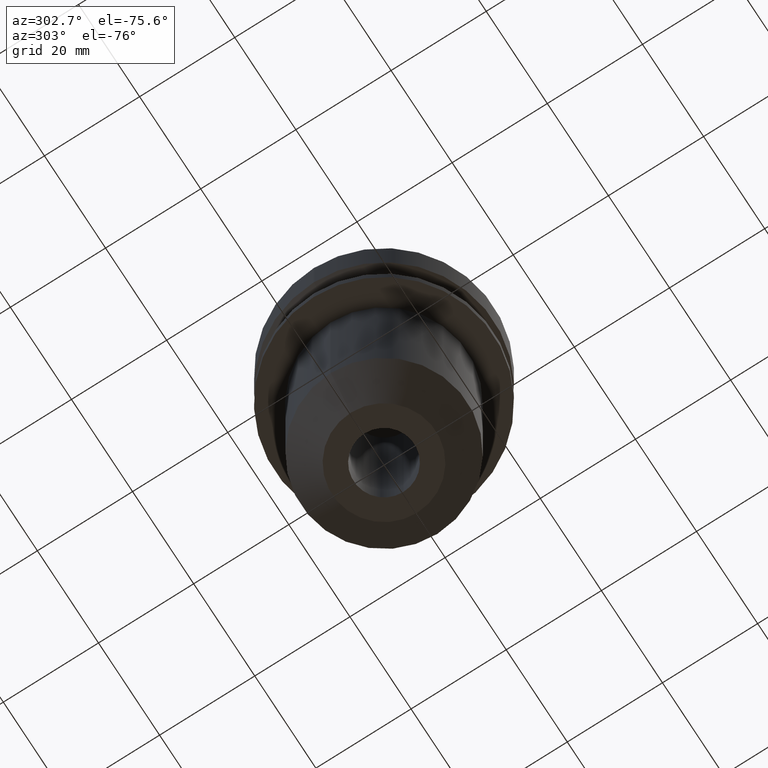
[diagram: clean part render]
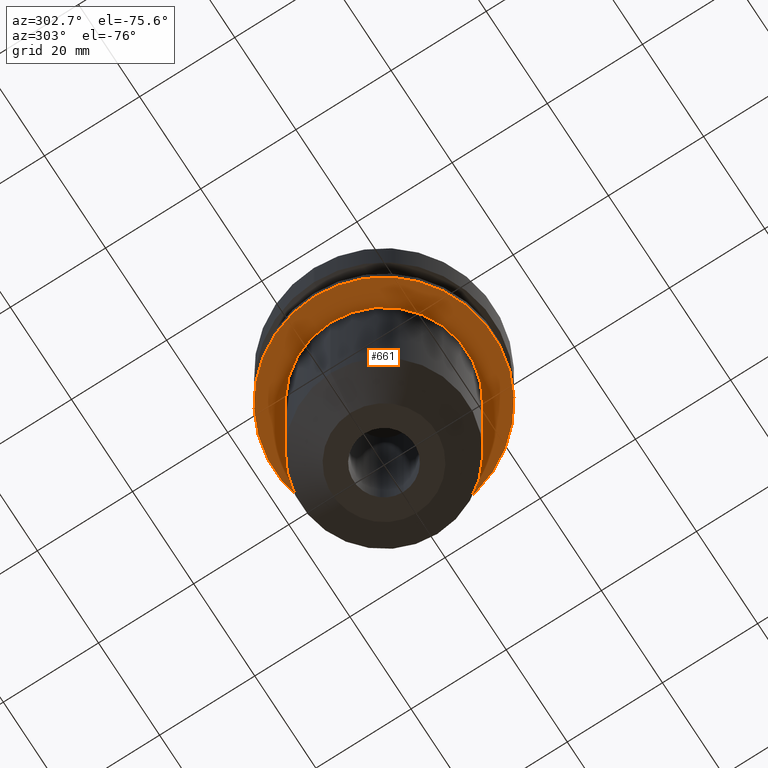
[diagram: same view with one face highlighted and labeled with its STEP entity id]
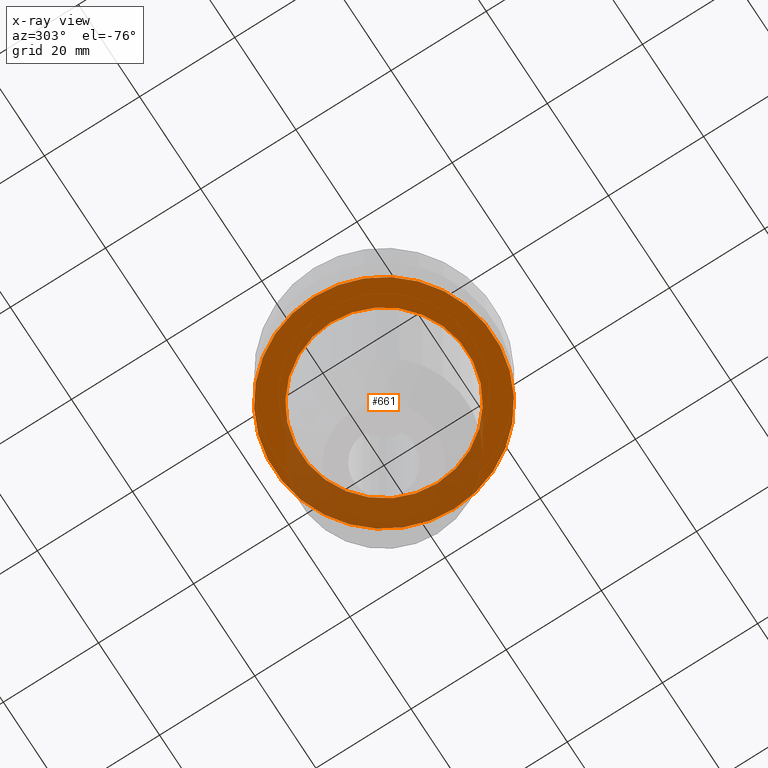
[diagram: x-ray of the same camera — body ghosted, the highlighted face saturated]
A machine part, auxiliary view. The second image highlights one B-rep face of the part: STEP entity #661.
The next image is the same camera in x-ray: the body ghosted, the highlighted face saturated — about 33% of this face is hidden behind the body in this view.
In plain terms, the highlighted planar face has unit normal (0, -0, 1).
Its self-contained STEP definition (entity closure, byte-faithful):
#16 = CARTESIAN_POINT ( 'NONE',  ( 22.99999999999999289, 0.000000000000000000, -21.00000000000000355 ) ) ;
#20 = CARTESIAN_POINT ( 'NONE',  ( -17.46499999999999986, 2.138845634710852534E-15, -20.99999999999999645 ) ) ;
#29 = DIRECTION ( 'NONE',  ( 1.000000000000000000, 0.000000000000000000, 0.000000000000000000 ) ) ;
#34 = DIRECTION ( 'NONE',  ( 1.000000000000000000, 0.000000000000000000, 0.000000000000000000 ) ) ;
#35 = ORIENTED_EDGE ( 'NONE', *, *, #422, .F. ) ;
#76 = CIRCLE ( 'NONE', #213, 17.46499999999999986 ) ;
#82 = VERTEX_POINT ( 'NONE', #20 ) ;
#105 = FACE_BOUND ( 'NONE', #585, .T. ) ;
#109 = DIRECTION ( 'NONE',  ( 0.000000000000000000, -0.000000000000000000, 1.000000000000000000 ) ) ;
#116 = EDGE_CURVE ( 'NONE', #280, #566, #770, .T. ) ;
#125 = CARTESIAN_POINT ( 'NONE',  ( 17.46499999999999986, 0.000000000000000000, -20.99999999999999645 ) ) ;
#167 = DIRECTION ( 'NONE',  ( -0.000000000000000000, -0.000000000000000000, 1.000000000000000000 ) ) ;
#213 = AXIS2_PLACEMENT_3D ( 'NONE', #287, #445, #330 ) ;
#218 = CARTESIAN_POINT ( 'NONE',  ( -22.99999999999999289, 2.816687638038911957E-15, -21.00000000000000355 ) ) ;
#227 = EDGE_CURVE ( 'NONE', #566, #280, #289, .T. ) ;
#268 = FACE_OUTER_BOUND ( 'NONE', #625, .T. ) ;
#280 = VERTEX_POINT ( 'NONE', #218 ) ;
#283 = CARTESIAN_POINT ( 'NONE',  ( 0.000000000000000000, 0.000000000000000000, -21.00000000000000355 ) ) ;
#287 = CARTESIAN_POINT ( 'NONE',  ( 0.000000000000000000, 0.000000000000000000, -20.99999999999999645 ) ) ;
#289 = CIRCLE ( 'NONE', #469, 22.99999999999999289 ) ;
#299 = CARTESIAN_POINT ( 'NONE',  ( 0.000000000000000000, 0.000000000000000000, -20.99999999999999645 ) ) ;
#306 = EDGE_CURVE ( 'NONE', #82, #473, #76, .T. ) ;
#327 = CARTESIAN_POINT ( 'NONE',  ( 0.000000000000000000, 0.000000000000000000, -21.00000000000000355 ) ) ;
#330 = DIRECTION ( 'NONE',  ( 1.000000000000000000, 0.000000000000000000, 0.000000000000000000 ) ) ;
#334 = PLANE ( 'NONE',  #486 ) ;
#343 = ORIENTED_EDGE ( 'NONE', *, *, #116, .F. ) ;
#356 = ORIENTED_EDGE ( 'NONE', *, *, #306, .F. ) ;
#365 = DIRECTION ( 'NONE',  ( 1.000000000000000000, 0.000000000000000000, 0.000000000000000000 ) ) ;
#422 = EDGE_CURVE ( 'NONE', #473, #82, #680, .T. ) ;
#445 = DIRECTION ( 'NONE',  ( 0.000000000000000000, 0.000000000000000000, -1.000000000000000000 ) ) ;
#466 = ORIENTED_EDGE ( 'NONE', *, *, #227, .F. ) ;
#467 = DIRECTION ( 'NONE',  ( 1.000000000000000000, 0.000000000000000000, 0.000000000000000000 ) ) ;
#469 = AXIS2_PLACEMENT_3D ( 'NONE', #283, #167, #34 ) ;
#473 = VERTEX_POINT ( 'NONE', #125 ) ;
#486 = AXIS2_PLACEMENT_3D ( 'NONE', #571, #109, #29 ) ;
#490 = DIRECTION ( 'NONE',  ( -0.000000000000000000, -0.000000000000000000, 1.000000000000000000 ) ) ;
#535 = AXIS2_PLACEMENT_3D ( 'NONE', #299, #657, #467 ) ;
#566 = VERTEX_POINT ( 'NONE', #16 ) ;
#571 = CARTESIAN_POINT ( 'NONE',  ( 0.000000000000000000, 22.99999999999999289, -20.99999999999999645 ) ) ;
#585 = EDGE_LOOP ( 'NONE', ( #35, #356 ) ) ;
#625 = EDGE_LOOP ( 'NONE', ( #466, #343 ) ) ;
#627 = AXIS2_PLACEMENT_3D ( 'NONE', #327, #490, #365 ) ;
#657 = DIRECTION ( 'NONE',  ( 0.000000000000000000, 0.000000000000000000, -1.000000000000000000 ) ) ;
#661 = ADVANCED_FACE ( 'NONE', ( #268, #105 ), #334, .F. ) ;
#680 = CIRCLE ( 'NONE', #535, 17.46499999999999986 ) ;
#770 = CIRCLE ( 'NONE', #627, 22.99999999999999289 ) ;